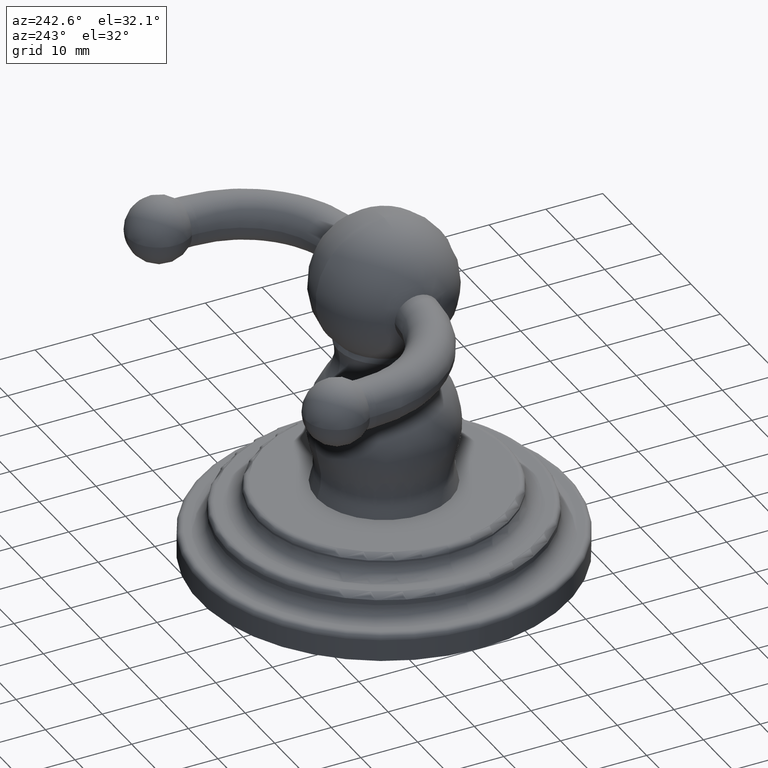
[diagram: clean part render]
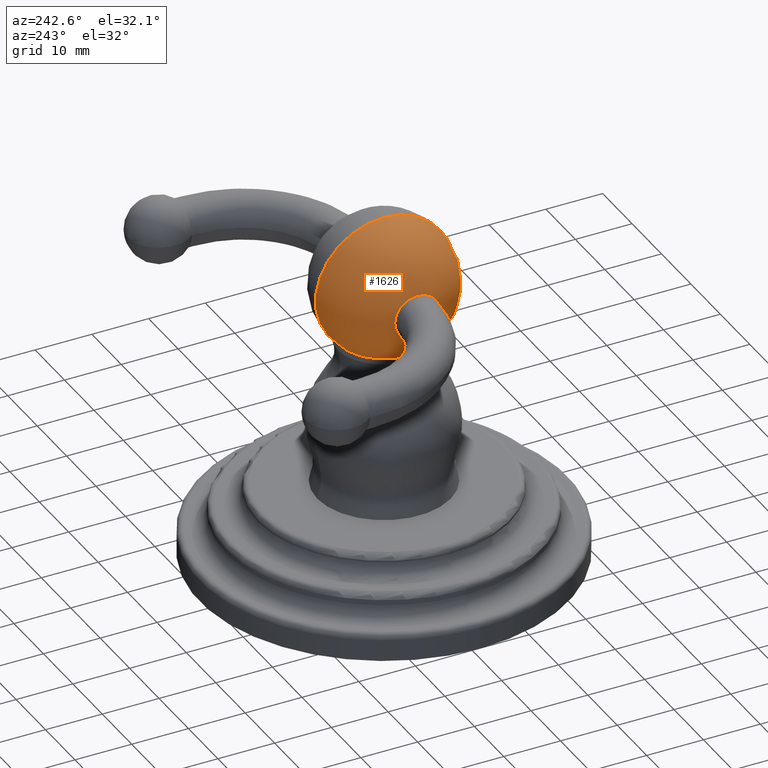
[diagram: same view with one face highlighted and labeled with its STEP entity id]
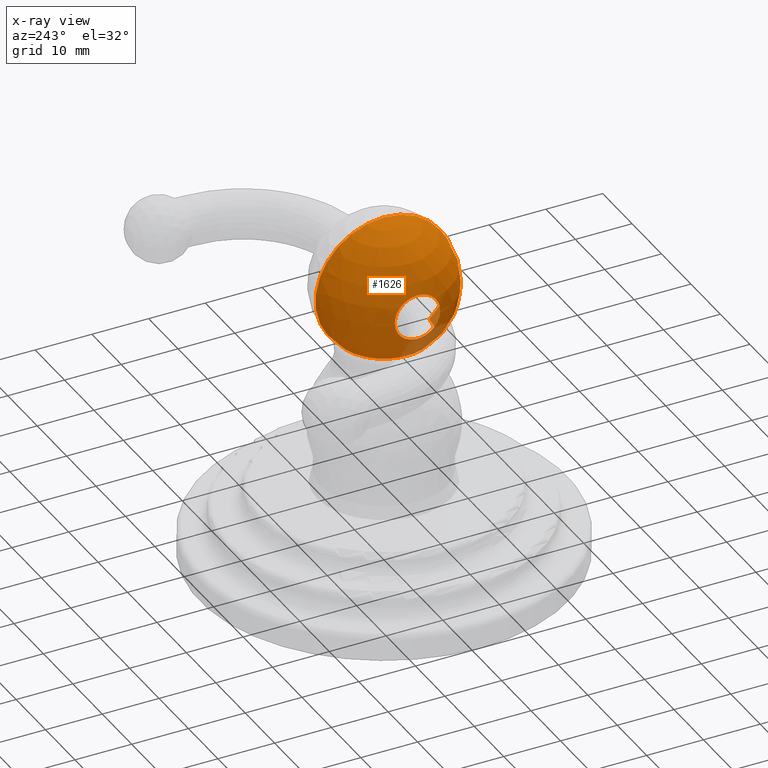
[diagram: x-ray of the same camera — body ghosted, the highlighted face saturated]
A machine part, auxiliary view. The second image highlights one B-rep face of the part: STEP entity #1626.
The next image is the same camera in x-ray: the body ghosted, the highlighted face saturated — about 4% of this face is hidden behind the body in this view.
In plain terms, the highlighted spherical surface has radius 12.065 mm.
Its self-contained STEP definition (entity closure, byte-faithful):
#582=CARTESIAN_POINT('',(0.E0,0.E0,1.589710201657E0));
#583=DIRECTION('',(0.E0,0.E0,1.E0));
#584=DIRECTION('',(0.E0,1.E0,0.E0));
#585=AXIS2_PLACEMENT_3D('',#582,#583,#584);
#590=CARTESIAN_POINT('',(-4.481169236489E-1,1.575316563088E-1,1.947E0));
#591=CARTESIAN_POINT('',(-4.481169236489E-1,1.575316563088E-1,
1.938658043387E0));
#592=CARTESIAN_POINT('',(-4.481170403726E-1,1.562266941467E-1,
1.922144988196E0));
#593=CARTESIAN_POINT('',(-4.481175641155E-1,1.502931628264E-1,
1.897601000492E0));
#594=CARTESIAN_POINT('',(-4.481184021499E-1,1.405469800447E-1,
1.874401758400E0));
#595=CARTESIAN_POINT('',(-4.481194941698E-1,1.273585824699E-1,
1.853197355619E0));
#596=CARTESIAN_POINT('',(-4.481207715661E-1,1.111867940494E-1,
1.834520319634E0));
#597=CARTESIAN_POINT('',(-4.481221775318E-1,9.239246684933E-2,
1.818634106494E0));
#598=CARTESIAN_POINT('',(-4.481236676331E-1,7.122997959657E-2,
1.805789554129E0));
#599=CARTESIAN_POINT('',(-4.481251758790E-1,4.837579476039E-2,
1.796432883520E0));
#600=CARTESIAN_POINT('',(-4.481266531304E-1,2.445469191423E-2,
1.790763225295E0));
#601=CARTESIAN_POINT('',(-4.481280660066E-1,6.382003789321E-6,
1.788867746246E0));
#602=CARTESIAN_POINT('',(-4.481293887489E-1,-2.441440695722E-2,
1.790765793518E0));
#603=CARTESIAN_POINT('',(-4.481306066316E-1,-4.833930279929E-2,
1.796436840830E0));
#604=CARTESIAN_POINT('',(-4.481317038819E-1,-7.118966067166E-2,
1.805795470275E0));
#605=CARTESIAN_POINT('',(-4.481326664023E-1,-9.233464002131E-2,
1.818630737421E0));
#606=CARTESIAN_POINT('',(-4.481334818877E-1,-1.111140825179E-1,
1.834499959533E0));
#607=CARTESIAN_POINT('',(-4.481341566948E-1,-1.272919064391E-1,
1.853175660410E0));
#608=CARTESIAN_POINT('',(-4.481346892350E-1,-1.404928083055E-1,
1.874394959768E0));
#609=CARTESIAN_POINT('',(-4.481350725998E-1,-1.502439022364E-1,
1.897609239307E0));
#610=CARTESIAN_POINT('',(-4.481353017474E-1,-1.561746004548E-1,
1.922148959048E0));
#611=CARTESIAN_POINT('',(-4.481353517216E-1,-1.574792257327E-1,
1.938659989724E0));
#612=CARTESIAN_POINT('',(-4.481353517216E-1,-1.574792257327E-1,1.947E0));
#617=CARTESIAN_POINT('',(-4.481353517216E-1,-1.574792257327E-1,1.947E0));
#618=CARTESIAN_POINT('',(-4.481353517216E-1,-1.574792257327E-1,
1.955936615452E0));
#619=CARTESIAN_POINT('',(-4.481352942782E-1,-1.559793717245E-1,
1.973340617082E0));
#620=CARTESIAN_POINT('',(-4.481350484074E-1,-1.496219819167E-1,
1.998244823197E0));
#621=CARTESIAN_POINT('',(-4.481346577751E-1,-1.397036321871E-1,
2.021062384303E0));
#622=CARTESIAN_POINT('',(-4.481341252186E-1,-1.265258069565E-1,
2.041829635542E0));
#623=CARTESIAN_POINT('',(-4.481334494127E-1,-1.103522199358E-1,
2.060234662331E0));
#624=CARTESIAN_POINT('',(-4.481326347884E-1,-9.162534058906E-2,
2.075864652214E0));
#625=CARTESIAN_POINT('',(-4.481316752611E-1,-7.058056200850E-2,
2.088497442752E0));
#626=CARTESIAN_POINT('',(-4.481305859646E-1,-4.792559170818E-2,
2.097681960475E0));
#627=CARTESIAN_POINT('',(-4.481293776932E-1,-2.420772417733E-2,
2.103256225848E0));
#628=CARTESIAN_POINT('',(-4.481280650587E-1,1.841502031207E-5,
2.105120551591E0));
#629=CARTESIAN_POINT('',(-4.481266670907E-1,2.421571780035E-2,
2.103261565278E0));
#630=CARTESIAN_POINT('',(-4.481252036039E-1,4.793651453674E-2,
2.097694957382E0));
#631=CARTESIAN_POINT('',(-4.481237107605E-1,7.059247767774E-2,
2.088516035795E0));
#632=CARTESIAN_POINT('',(-4.481222329535E-1,9.162514461301E-2,
2.075899639268E0));
#633=CARTESIAN_POINT('',(-4.481208359186E-1,1.103472567611E-1,
2.060288798514E0));
#634=CARTESIAN_POINT('',(-4.481195611929E-1,1.265278594919E-1,
2.041895270006E0));
#635=CARTESIAN_POINT('',(-4.481184718194E-1,1.397201819206E-1,
2.021132263729E0));
#636=CARTESIAN_POINT('',(-4.481176191861E-1,1.496628503922E-1,
1.998281546758E0));
#637=CARTESIAN_POINT('',(-4.481170583176E-1,1.560263598972E-1,
1.973375852653E0));
#638=CARTESIAN_POINT('',(-4.481169236489E-1,1.575316563088E-1,
1.955949547210E0));
#639=CARTESIAN_POINT('',(-4.481169236489E-1,1.575316563088E-1,1.947E0));
#644=CARTESIAN_POINT('',(0.E0,0.E0,1.947E0));
#645=DIRECTION('',(1.E0,0.E0,0.E0));
#646=DIRECTION('',(0.E0,6.589473684211E-1,-7.521890491432E-1));
#647=AXIS2_PLACEMENT_3D('',#644,#645,#646);
#660=CARTESIAN_POINT('',(0.E0,0.E0,1.947E0));
#661=DIRECTION('',(-1.E0,0.E0,0.E0));
#662=DIRECTION('',(0.E0,-6.589473684211E-1,-7.521890491432E-1));
#663=AXIS2_PLACEMENT_3D('',#660,#661,#662);
#928=CARTESIAN_POINT('',(0.E0,3.13E-1,1.589710201657E0));
#929=VERTEX_POINT('',#928);
#930=CARTESIAN_POINT('',(0.E0,0.E0,2.422E0));
#931=VERTEX_POINT('',#930);
#938=CARTESIAN_POINT('',(0.E0,-3.13E-1,1.589710201657E0));
#939=VERTEX_POINT('',#938);
#966=VERTEX_POINT('',#590);
#967=VERTEX_POINT('',#612);
#1608=CARTESIAN_POINT('',(0.E0,0.E0,1.947E0));
#1609=DIRECTION('',(0.E0,0.E0,1.E0));
#1610=DIRECTION('',(0.E0,1.E0,0.E0));
#1611=AXIS2_PLACEMENT_3D('',#1608,#1609,#1610);
#1612=SPHERICAL_SURFACE('',#1611,4.75E-1);
#1614=ORIENTED_EDGE('',*,*,#1613,.T.);
#1616=ORIENTED_EDGE('',*,*,#1615,.F.);
#1617=ORIENTED_EDGE('',*,*,#1594,.F.);
#1618=EDGE_LOOP('',(#1614,#1616,#1617));
#1619=FACE_OUTER_BOUND('',#1618,.F.);
#1621=ORIENTED_EDGE('',*,*,#1620,.T.);
#1623=ORIENTED_EDGE('',*,*,#1622,.T.);
#1624=EDGE_LOOP('',(#1621,#1623));
#1625=FACE_BOUND('',#1624,.F.);
#586=CIRCLE('',#585,3.13E-1);
#613=B_SPLINE_CURVE_WITH_KNOTS('',3,(#590,#591,#592,#593,#594,#595,#596,#597,
#598,#599,#600,#601,#602,#603,#604,#605,#606,#607,#608,#609,#610,#611,#612),
.UNSPECIFIED.,.F.,.F.,(4,1,1,1,1,1,1,1,1,1,1,1,1,1,1,1,1,1,1,1,4),(0.E0,5.E-2,
1.E-1,1.5E-1,2.E-1,2.5E-1,3.E-1,3.5E-1,4.E-1,4.5E-1,5.E-1,5.5E-1,6.E-1,6.5E-1,
7.E-1,7.5E-1,8.E-1,8.5E-1,9.E-1,9.5E-1,1.E0),.UNSPECIFIED.);
#640=B_SPLINE_CURVE_WITH_KNOTS('',3,(#617,#618,#619,#620,#621,#622,#623,#624,
#625,#626,#627,#628,#629,#630,#631,#632,#633,#634,#635,#636,#637,#638,#639),
.UNSPECIFIED.,.F.,.F.,(4,1,1,1,1,1,1,1,1,1,1,1,1,1,1,1,1,1,1,1,4),(0.E0,5.E-2,
1.E-1,1.5E-1,2.E-1,2.5E-1,3.E-1,3.5E-1,4.E-1,4.5E-1,5.E-1,5.5E-1,6.E-1,6.5E-1,
7.E-1,7.5E-1,8.E-1,8.5E-1,9.E-1,9.5E-1,1.E0),.UNSPECIFIED.);
#648=CIRCLE('',#647,4.75E-1);
#664=CIRCLE('',#663,4.75E-1);
#1594=EDGE_CURVE('',#929,#939,#586,.T.);
#1613=EDGE_CURVE('',#929,#931,#648,.T.);
#1615=EDGE_CURVE('',#939,#931,#664,.T.);
#1620=EDGE_CURVE('',#966,#967,#613,.T.);
#1622=EDGE_CURVE('',#967,#966,#640,.T.);
#1626=ADVANCED_FACE('',(#1619,#1625),#1612,.T.);